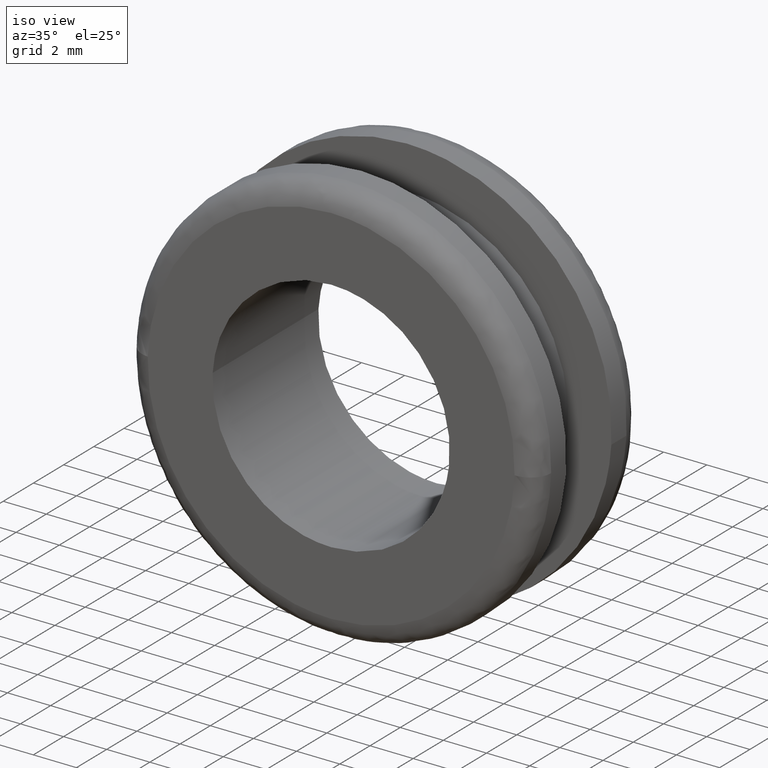
[diagram: clean part render]
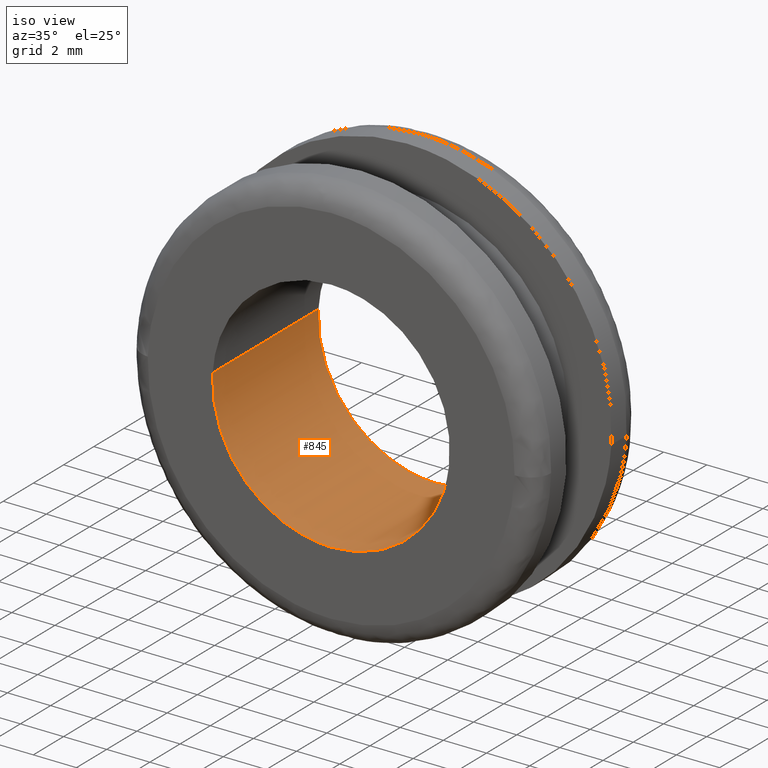
[diagram: same view with one face highlighted and labeled with its STEP entity id]
A machine part, iso view. The second image highlights one B-rep face of the part: STEP entity #845.
In plain terms, the highlighted face is a freeform B-spline surface patch.
Its self-contained STEP definition (entity closure, byte-faithful):
#682=CARTESIAN_POINT('',(5.461552500824630,6.999999999999999,-0.649187400320913));
#683=VERTEX_POINT('',#682);
#701=CARTESIAN_POINT('',(5.461552499551289,-1.811287E-015,-0.649187411033419));
#702=VERTEX_POINT('',#701);
#703=CARTESIAN_POINT('',(5.461552500824630,6.999999999999999,-0.649187400320913));
#704=CARTESIAN_POINT('',(5.461552499551289,-1.811287E-015,-0.649187411033419));
#705=QUASI_UNIFORM_CURVE('',1,(#703,#704),.UNSPECIFIED.,.F.,.U.);
#706=EDGE_CURVE('',#683,#702,#705,.T.);
#725=CARTESIAN_POINT('',(-5.489741650762265,-5.884168E-016,0.335762725548764));
#726=VERTEX_POINT('',#725);
#740=CARTESIAN_POINT('',(-5.489741653929409,7.000000000000019,0.335762673765096));
#741=VERTEX_POINT('',#740);
#742=CARTESIAN_POINT('',(-5.489741653929409,7.000000000000019,0.335762673765096));
#743=CARTESIAN_POINT('',(-5.489741650762265,-5.884168E-016,0.335762725548764));
#744=QUASI_UNIFORM_CURVE('',1,(#742,#743),.UNSPECIFIED.,.F.,.U.);
#745=EDGE_CURVE('',#741,#726,#744,.T.);
#763=CARTESIAN_POINT('',(-5.489741391320267,7.175000000000001,0.335766967441713));
#764=CARTESIAN_POINT('',(-5.825508358761980,7.175000000000001,-5.153974423878555));
#765=CARTESIAN_POINT('',(-0.335766967441713,7.175000000000001,-5.489741391320267));
#766=CARTESIAN_POINT('',(4.848489199617255,7.175000000000000,-5.806824082028901));
#767=CARTESIAN_POINT('',(5.461552395000165,7.175000000000001,-0.649188290612172));
#768=CARTESIAN_POINT('',(-5.489741391320267,-0.179375000000001,0.335766967441713));
#769=CARTESIAN_POINT('',(-5.825508358761980,-0.179375000000001,-5.153974423878555));
#770=CARTESIAN_POINT('',(-0.335766967441713,-0.179375000000001,-5.489741391320267));
#771=CARTESIAN_POINT('',(4.848489199617255,-0.179375000000001,-5.806824082028901));
#772=CARTESIAN_POINT('',(5.461552395000165,-0.179375000000001,-0.649188290612172));
#780=(BOUNDED_SURFACE()B_SPLINE_SURFACE(2,1,((#763,#768),(#764,#769),(#765,#770),(#766,#771),(#767,#772)),.UNSPECIFIED.,.F.,.F.,.U.)B_SPLINE_SURFACE_WITH_KNOTS((3,2,3),(2,2),(0.0,9.112698372208092,17.860888809527861),(0.0,7.354375000000002),.UNSPECIFIED.)GEOMETRIC_REPRESENTATION_ITEM()RATIONAL_B_SPLINE_SURFACE(((1.0,1.0),(0.707106781186548,0.707106781186548),(1.0,1.0),(0.718822509939086,0.718822509939086),(0.977505800795127,0.977505800795127)))REPRESENTATION_ITEM('')SURFACE());
#781=CARTESIAN_POINT('',(0.0,7.0,-5.500000000000000));
#782=VERTEX_POINT('',#781);
#783=CARTESIAN_POINT('',(0.0,7.0,-5.500000000000000));
#784=CARTESIAN_POINT('',(4.884961496545201,6.999999999999999,-5.500000000000000));
#785=CARTESIAN_POINT('',(5.461552500824630,6.999999999999999,-0.649187400320913));
#793=(BOUNDED_CURVE()B_SPLINE_CURVE(2,(#783,#784,#785),.UNSPECIFIED.,.F.,.U.)B_SPLINE_CURVE_WITH_KNOTS((3,3),(0.0,0.229562528614309),.UNSPECIFIED.)CURVE()GEOMETRIC_REPRESENTATION_ITEM()RATIONAL_B_SPLINE_CURVE((1.0,0.731050768300799,0.956026862183552))REPRESENTATION_ITEM(''));
#794=EDGE_CURVE('',#782,#683,#793,.T.);
#795=ORIENTED_EDGE('',*,*,#794,.F.);
#796=CARTESIAN_POINT('',(-5.489741653929409,7.000000000000018,0.335762673765096));
#797=CARTESIAN_POINT('',(-5.500000000000001,7.0,0.168038045284534));
#798=CARTESIAN_POINT('',(-5.500000000000000,7.0,-1.928755E-016));
#799=CARTESIAN_POINT('',(-5.500000000000001,6.999999999999999,-5.500000000000001));
#800=CARTESIAN_POINT('',(0.0,7.0,-5.500000000000000));
#808=(BOUNDED_CURVE()B_SPLINE_CURVE(2,(#796,#797,#798,#799,#800),.UNSPECIFIED.,.F.,.U.)B_SPLINE_CURVE_WITH_KNOTS((3,2,3),(0.739333097195537,0.750000000000000,1.0),.UNSPECIFIED.)CURVE()GEOMETRIC_REPRESENTATION_ITEM()RATIONAL_B_SPLINE_CURVE((0.976072330904559,0.987502946011322,1.0,0.707106781186548,1.0))REPRESENTATION_ITEM(''));
#809=EDGE_CURVE('',#741,#782,#808,.T.);
#810=ORIENTED_EDGE('',*,*,#809,.F.);
#811=ORIENTED_EDGE('',*,*,#745,.T.);
#812=CARTESIAN_POINT('',(0.0,-1.010300E-015,-5.500000000000000));
#813=VERTEX_POINT('',#812);
#814=CARTESIAN_POINT('',(-5.489741650762265,-5.884168E-016,0.335762725548764));
#815=CARTESIAN_POINT('',(-5.500000000000001,-1.010300E-015,0.168038071248962));
#816=CARTESIAN_POINT('',(-5.500000000000000,-1.010300E-015,-1.928755E-016));
#817=CARTESIAN_POINT('',(-5.500000000000001,-1.010300E-015,-5.500000000000001));
#818=CARTESIAN_POINT('',(0.0,-1.010300E-015,-5.500000000000000));
#826=(BOUNDED_CURVE()B_SPLINE_CURVE(2,(#814,#815,#816,#817,#818),.UNSPECIFIED.,.F.,.U.)B_SPLINE_CURVE_WITH_KNOTS((3,2,3),(0.739333095567936,0.750000000000000,1.0),.UNSPECIFIED.)CURVE()GEOMETRIC_REPRESENTATION_ITEM()RATIONAL_B_SPLINE_CURVE((0.976072327416297,0.987502944104469,1.0,0.707106781186548,1.0))REPRESENTATION_ITEM(''));
#827=EDGE_CURVE('',#726,#813,#826,.T.);
#828=ORIENTED_EDGE('',*,*,#827,.T.);
#829=CARTESIAN_POINT('',(0.0,-1.010300E-015,-5.500000000000000));
#830=CARTESIAN_POINT('',(4.884961477247180,-1.010300E-015,-5.500000000000000));
#831=CARTESIAN_POINT('',(5.461552499551291,-1.811287E-015,-0.649187411033419));
#839=(BOUNDED_CURVE()B_SPLINE_CURVE(2,(#829,#830,#831),.UNSPECIFIED.,.F.,.U.)B_SPLINE_CURVE_WITH_KNOTS((3,3),(0.0,0.229562527951329),.UNSPECIFIED.)CURVE()GEOMETRIC_REPRESENTATION_ITEM()RATIONAL_B_SPLINE_CURVE((1.0,0.731050769077528,0.956026860884084))REPRESENTATION_ITEM(''));
#840=EDGE_CURVE('',#813,#702,#839,.T.);
#841=ORIENTED_EDGE('',*,*,#840,.T.);
#842=ORIENTED_EDGE('',*,*,#706,.F.);
#843=EDGE_LOOP('',(#795,#810,#811,#828,#841,#842));
#844=FACE_OUTER_BOUND('',#843,.T.);
#845=ADVANCED_FACE('',(#844),#780,.F.);